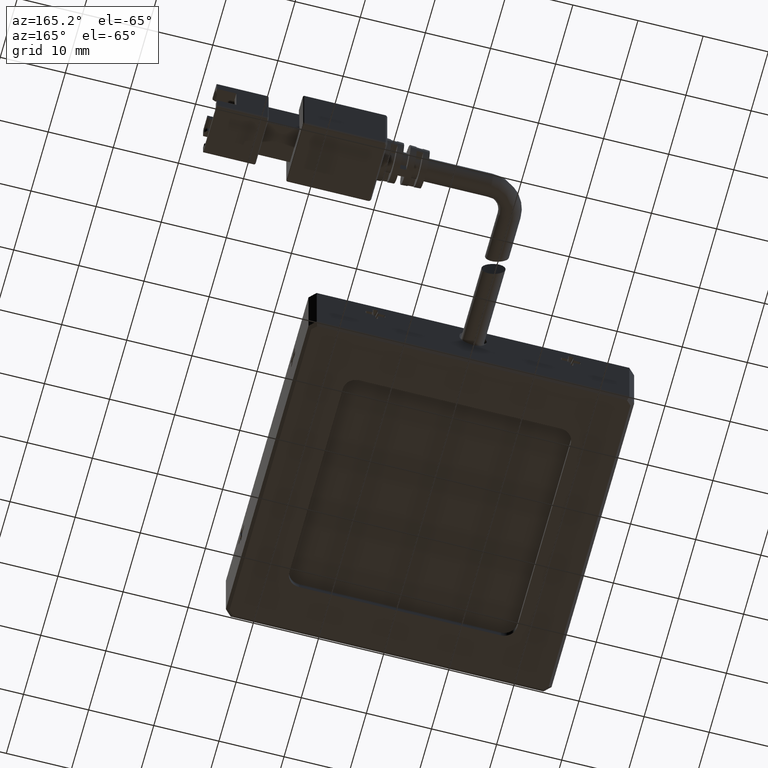
[diagram: clean part render]
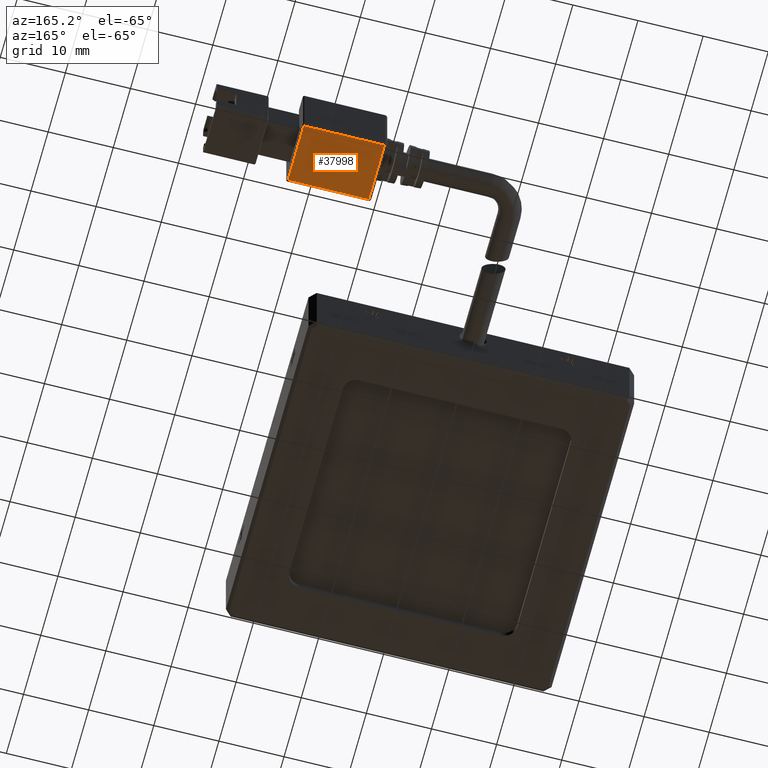
[diagram: same view with one face highlighted and labeled with its STEP entity id]
A machine part, auxiliary view. The second image highlights one B-rep face of the part: STEP entity #37998.
In plain terms, the highlighted planar face has unit normal (0, -0, 1).
Its self-contained STEP definition (entity closure, byte-faithful):
#583 = CARTESIAN_POINT ( 'NONE',  ( 40.66702531645572100, 59.21113924050632700, -6.250000000000008900 ) ) ;
#3353 = CARTESIAN_POINT ( 'NONE',  ( 53.26702531645571500, 68.81113924050633600, -6.250000000000008900 ) ) ;
#4018 = DIRECTION ( 'NONE',  ( 0.0000000000000000000, -1.000000000000000000, -2.465190328815661900E-032 ) ) ;
#4465 = CARTESIAN_POINT ( 'NONE',  ( 40.66702531645572100, 59.61113924050632600, -6.250000000000010700 ) ) ;
#5773 = EDGE_CURVE ( 'NONE', #15451, #41700, #6811, .T. ) ;
#6452 = CARTESIAN_POINT ( 'NONE',  ( 53.06702531645572000, 59.21113924050632700, -6.250000000000008900 ) ) ;
#6562 = CARTESIAN_POINT ( 'NONE',  ( 40.66702531645572100, 68.81113924050633600, -6.250000000000008900 ) ) ;
#6632 = DIRECTION ( 'NONE',  ( -1.000000000000000000, -0.0000000000000000000, -0.0000000000000000000 ) ) ;
#6811 = LINE ( 'NONE', #12680, #38679 ) ;
#7524 = VERTEX_POINT ( 'NONE', #6562 ) ;
#8045 = VECTOR ( 'NONE', #19423, 1000.000000000000000 ) ;
#10192 = VECTOR ( 'NONE', #6632, 1000.000000000000000 ) ;
#11284 = FACE_OUTER_BOUND ( 'NONE', #26354, .T. ) ;
#12171 = ORIENTED_EDGE ( 'NONE', *, *, #14144, .F. ) ;
#12680 = CARTESIAN_POINT ( 'NONE',  ( 53.26702531645571500, 59.61113924050632600, -6.250000000000010700 ) ) ;
#14144 = EDGE_CURVE ( 'NONE', #7524, #15451, #16767, .T. ) ;
#15375 = CARTESIAN_POINT ( 'NONE',  ( 53.06702531645572000, 68.81113924050633600, -6.250000000000010700 ) ) ;
#15451 = VERTEX_POINT ( 'NONE', #4465 ) ;
#16002 = CARTESIAN_POINT ( 'NONE',  ( 53.06702531645572000, 59.61113924050632600, -6.250000000000010700 ) ) ;
#16569 = PLANE ( 'NONE',  #30384 ) ;
#16642 = LINE ( 'NONE', #6452, #8045 ) ;
#16717 = DIRECTION ( 'NONE',  ( 0.0000000000000000000, -2.465190328815661900E-032, 1.000000000000000000 ) ) ;
#16767 = LINE ( 'NONE', #583, #33010 ) ;
#18814 = LINE ( 'NONE', #3353, #10192 ) ;
#19423 = DIRECTION ( 'NONE',  ( -0.0000000000000000000, 1.000000000000000000, 2.465190328815661900E-032 ) ) ;
#25805 = DIRECTION ( 'NONE',  ( 1.000000000000000000, -0.0000000000000000000, -0.0000000000000000000 ) ) ;
#26354 = EDGE_LOOP ( 'NONE', ( #35127, #28870, #12171, #35770 ) ) ;
#28870 = ORIENTED_EDGE ( 'NONE', *, *, #5773, .F. ) ;
#30384 = AXIS2_PLACEMENT_3D ( 'NONE', #36134, #16717, #39403 ) ;
#33010 = VECTOR ( 'NONE', #4018, 1000.000000000000000 ) ;
#34862 = EDGE_CURVE ( 'NONE', #41700, #35728, #16642, .T. ) ;
#35127 = ORIENTED_EDGE ( 'NONE', *, *, #34862, .F. ) ;
#35728 = VERTEX_POINT ( 'NONE', #15375 ) ;
#35770 = ORIENTED_EDGE ( 'NONE', *, *, #36821, .F. ) ;
#36134 = CARTESIAN_POINT ( 'NONE',  ( 53.26702531645571500, 59.21113924050632700, -6.250000000000008900 ) ) ;
#36821 = EDGE_CURVE ( 'NONE', #35728, #7524, #18814, .T. ) ;
#37998 = ADVANCED_FACE ( 'NONE', ( #11284 ), #16569, .F. ) ;
#38679 = VECTOR ( 'NONE', #25805, 1000.000000000000000 ) ;
#39403 = DIRECTION ( 'NONE',  ( 0.0000000000000000000, -1.000000000000000000, -2.465190328815661900E-032 ) ) ;
#41700 = VERTEX_POINT ( 'NONE', #16002 ) ;